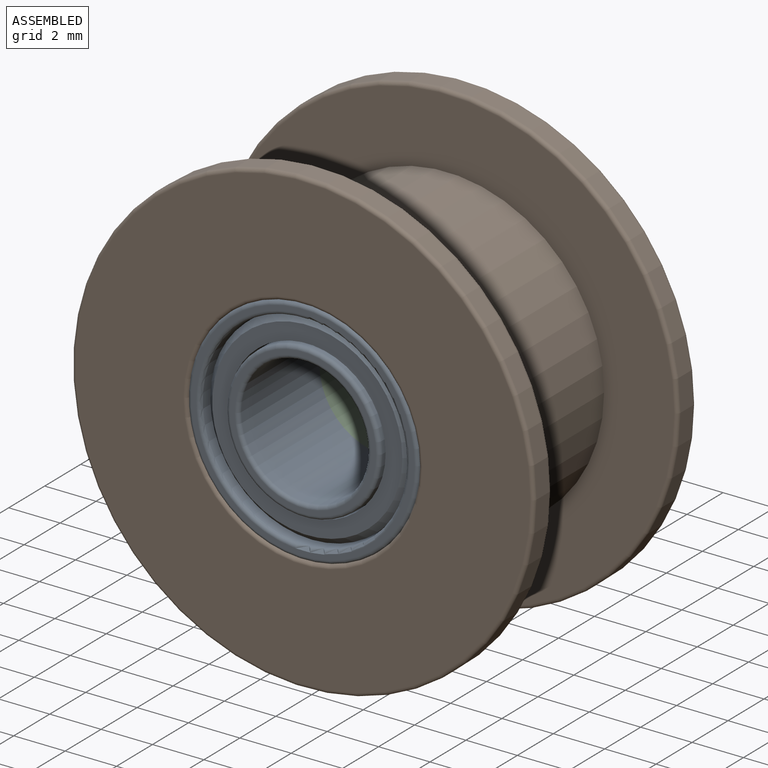
[diagram: assembled view]
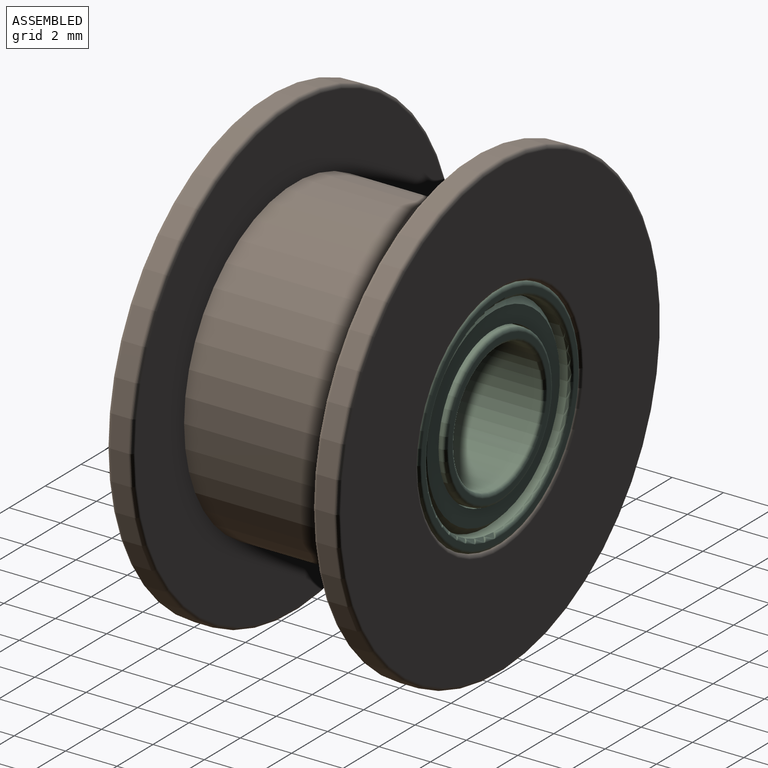
[diagram: assembled view, second angle]
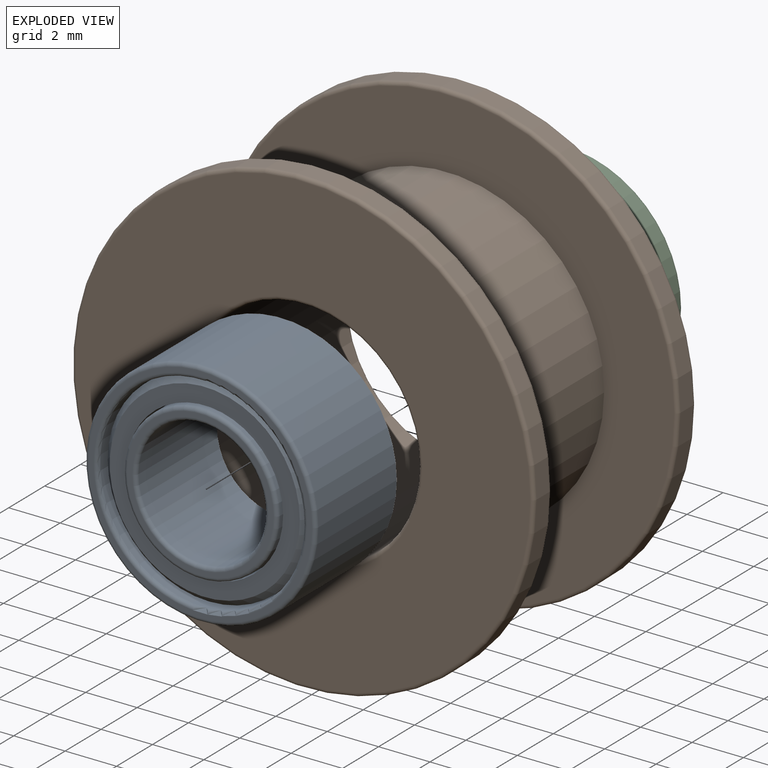
[diagram: exploded view]
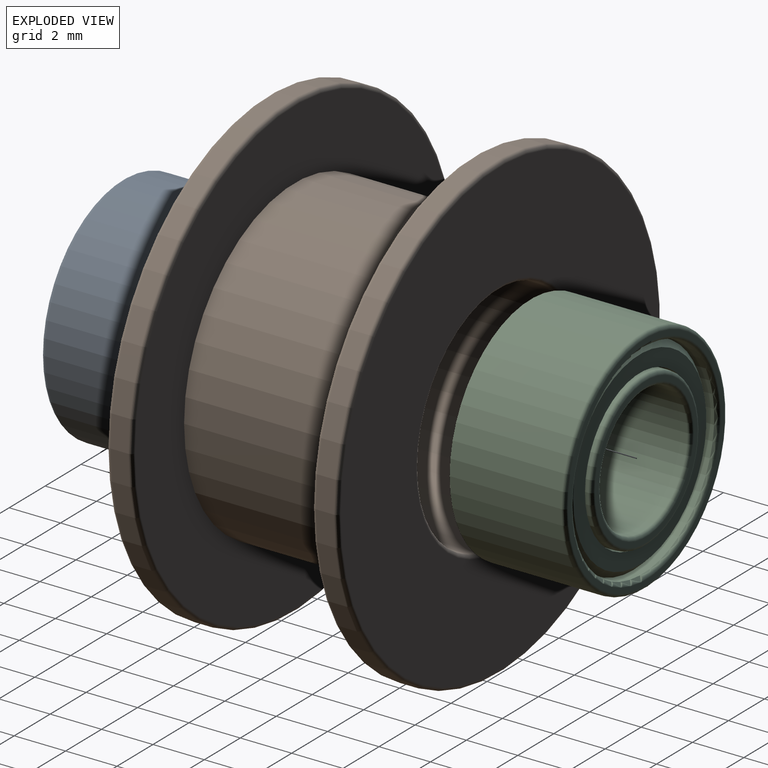
[diagram: exploded view, second angle]
ASSEMBLY  parts=3 mates=2
PART A: 17 faces, bbox 9.7x4.5x9.7 mm
  f0: torus R=2.65mm, axis (0,-1,0), area 3.8mm2, adj f1,f2
  f1: plane 5.7x5.7mm, normal (0,-1,0), area 3.5mm2, adj f0,f3
  f2: cylinder r=2.5mm len=5mm, axis (0,1,0), area 68.3mm2, adj f0,f16
  f3: torus R=2.85mm, axis (0,-1,0), area 4.4mm2, adj f1,f4
  f4: cylinder r=3mm len=6mm, axis (0,-1,0), area 20.7mm2, adj f3,f15
  f5: torus R=4.15mm, axis (0,1,0), area 6mm2, adj f6,f7
  f6: plane 8.7x8.7mm, normal (0,-1,0), area 5.3mm2, adj f5,f8
  f7: cylinder r=4mm len=8mm, axis (0,-1,0), area 27.6mm2, adj f5,f13
  f8: torus R=4.35mm, axis (0,1,0), area 6.6mm2, adj f6,f9
  f9: cylinder r=4.5mm len=9mm, axis (0,1,0), area 123mm2, adj f8,f16
  f10: cone r=3.82mm half-angle=45deg, axis (0,1,0), area 8.5mm2, adj f11,f12
  f11: cylinder r=3.95mm len=7.9mm, axis (0,-1,0), area 18.6mm2, adj f10,f13
  f12: plane 7.4x7.4mm, normal (0,-1,0), area 13.8mm2, adj f10,f14
  f13: plane 8x8mm, normal (0,-1,0), area 1.2mm2, adj f7,f11
  f14: cylinder r=3.05mm len=6.1mm, axis (0,-1,0), area 19.2mm2, adj f12,f15
  f15: plane 6.1x6.1mm, normal (0,-1,0), area 1mm2, adj f4,f14
  f16: plane 9x9mm, normal (0,1,0), area 44mm2, adj f2,f9
PART B: 14 faces, bbox 19.5x9x19.5 mm
  f0: cylinder r=6.12mm len=12.25mm, axis (0,-1,0), area 269.4mm2, adj f9,f12
  f1: torus R=4.65mm, axis (0,-1,0), area 6.7mm2, adj f2,f3
  f2: cylinder r=4.5mm len=9mm, axis (0,1,0), area 246mm2, adj f1,f4
  f3: plane 17.7x17.7mm, normal (0,-1,0), area 178.1mm2, adj f1,f13
  f4: torus R=4.65mm, axis (0,1,0), area 6.7mm2, adj f2,f5
  f5: plane 17.7x17.7mm, normal (0,1,0), area 178.1mm2, adj f4,f6
  f6: torus R=8.85mm, axis (0,-1,0), area 13.2mm2, adj f5,f7
  f7: cylinder r=9mm len=18mm, axis (0,1,0), area 39.6mm2, adj f6,f8
  f8: torus R=8.85mm, axis (0,1,0), area 13.2mm2, adj f7,f9
  f9: plane 17.7x17.7mm, normal (0,-1,0), area 128.2mm2, adj f0,f8
  f10: torus R=8.85mm, axis (0,-1,0), area 13.2mm2, adj f11,f12
  f11: cylinder r=9mm len=18mm, axis (0,1,0), area 39.6mm2, adj f10,f13
  f12: plane 17.7x17.7mm, normal (0,1,0), area 128.2mm2, adj f0,f10
  f13: torus R=8.85mm, axis (0,1,0), area 13.2mm2, adj f3,f11
PART C: 17 faces, bbox 9.7x4.5x9.7 mm
  f0: torus R=2.65mm, axis (0,-1,0), area 3.8mm2, adj f1,f2
  f1: plane 5.7x5.7mm, normal (0,1,0), area 3.5mm2, adj f0,f3
  f2: cylinder r=2.5mm len=5mm, axis (0,1,0), area 68.3mm2, adj f0,f16
  f3: torus R=2.85mm, axis (0,1,0), area 4.4mm2, adj f1,f4
  f4: cylinder r=3mm len=6mm, axis (0,-1,0), area 20.7mm2, adj f3,f15
  f5: torus R=4.15mm, axis (0,-1,0), area 6mm2, adj f6,f7
  f6: plane 8.7x8.7mm, normal (0,1,0), area 5.3mm2, adj f5,f8
  f7: cylinder r=4mm len=8mm, axis (0,-1,0), area 27.6mm2, adj f5,f13
  f8: torus R=4.35mm, axis (0,1,0), area 6.6mm2, adj f6,f9
  f9: cylinder r=4.5mm len=9mm, axis (0,1,0), area 123mm2, adj f8,f16
  f10: cone r=3.82mm half-angle=45deg, axis (0,-1,0), area 8.5mm2, adj f11,f12
  f11: cylinder r=3.95mm len=7.9mm, axis (0,-1,0), area 18.6mm2, adj f10,f13
  f12: plane 7.4x7.4mm, normal (0,1,0), area 13.8mm2, adj f10,f14
  f13: plane 8x8mm, normal (0,1,0), area 1.2mm2, adj f7,f11
  f14: cylinder r=3.05mm len=6.1mm, axis (0,-1,0), area 19.2mm2, adj f12,f15
  f15: plane 6.1x6.1mm, normal (0,1,0), area 1mm2, adj f4,f14
  f16: plane 9x9mm, normal (0,-1,0), area 44mm2, adj f2,f9
PLACE A at identity
PLACE B at identity
PLACE C at identity
MATE fastened C.f0 <-> B.f0  axis (0,1,0) through (0,4.5,0)mm
MATE fastened A.f0 <-> B.f0  axis (0,-1,0) through (0,-4.5,0)mm
